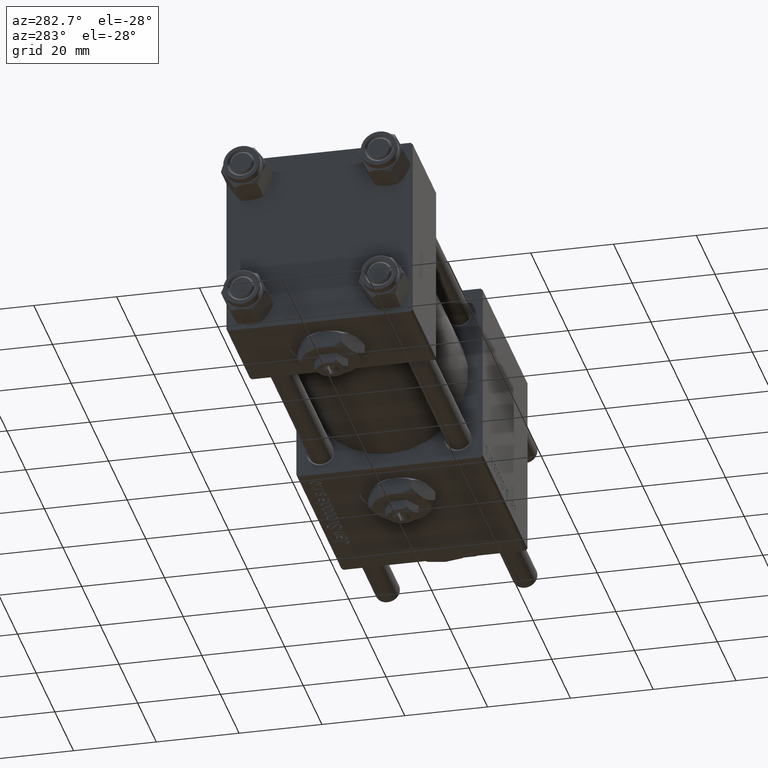
[diagram: clean part render]
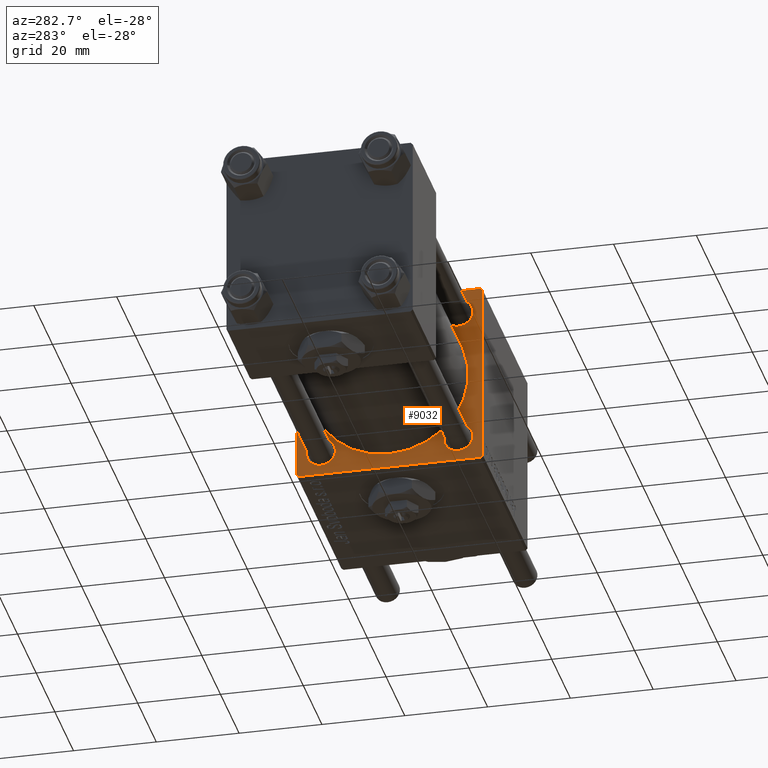
[diagram: same view with one face highlighted and labeled with its STEP entity id]
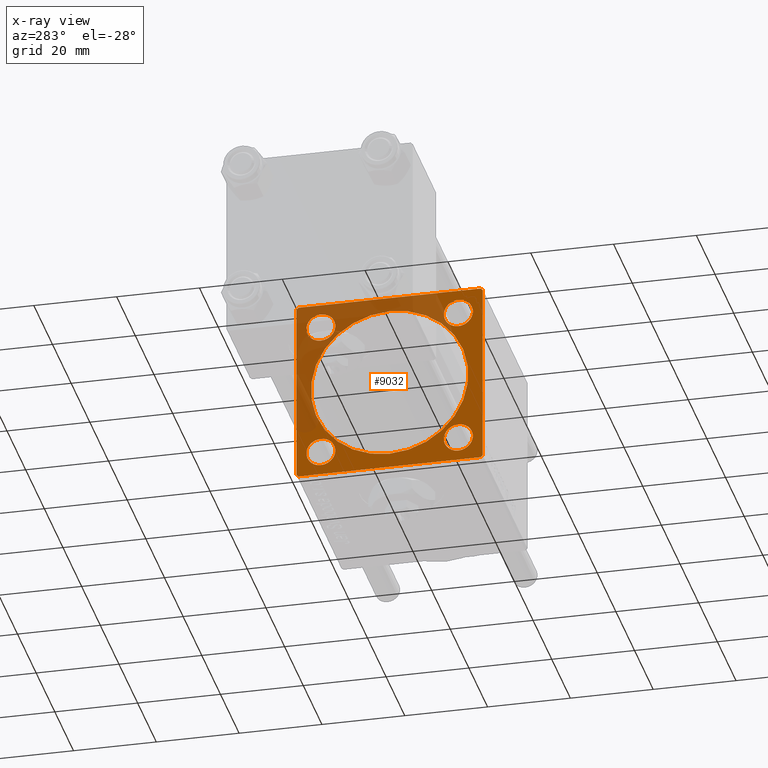
[diagram: x-ray of the same camera — body ghosted, the highlighted face saturated]
A machine part, auxiliary view. The second image highlights one B-rep face of the part: STEP entity #9032.
The next image is the same camera in x-ray: the body ghosted, the highlighted face saturated — about 40% of this face is hidden behind the body in this view.
In plain terms, the highlighted planar face has unit normal (-1, 0, 0).
Its self-contained STEP definition (entity closure, byte-faithful):
#458 = DIRECTION ( 'NONE',  ( 0.000000000000000000, 0.000000000000000000, -1.000000000000000000 ) ) ;
#637 = EDGE_CURVE ( 'NONE', #55039, #17297, #49573, .T. ) ;
#638 = CARTESIAN_POINT ( 'NONE',  ( 75.00000000000001421, 16.59999999999999787, -16.60000000000000497 ) ) ;
#649 = AXIS2_PLACEMENT_3D ( 'NONE', #12727, #50199, #18370 ) ;
#927 = DIRECTION ( 'NONE',  ( 1.000000000000000000, -0.000000000000000000, 0.000000000000000000 ) ) ;
#1173 = CARTESIAN_POINT ( 'NONE',  ( 75.00000000000001421, -21.99999999999998224, -22.50000000000000000 ) ) ;
#1611 = LINE ( 'NONE', #10829, #16362 ) ;
#2902 = AXIS2_PLACEMENT_3D ( 'NONE', #20606, #57190, #43792 ) ;
#3239 = VERTEX_POINT ( 'NONE', #1173 ) ;
#3287 = CIRCLE ( 'NONE', #21391, 3.500000000000016875 ) ;
#4678 = FACE_BOUND ( 'NONE', #40788, .T. ) ;
#4695 = EDGE_LOOP ( 'NONE', ( #56896, #32554 ) ) ;
#4976 = VECTOR ( 'NONE', #458, 1000.000000000000000 ) ;
#5048 = CARTESIAN_POINT ( 'NONE',  ( 75.00000000000001421, 22.50000000000000355, -22.49999999999999645 ) ) ;
#5407 = VECTOR ( 'NONE', #34280, 1000.000000000000000 ) ;
#5535 = CIRCLE ( 'NONE', #7452, 3.500000000000031086 ) ;
#6814 = ORIENTED_EDGE ( 'NONE', *, *, #39227, .T. ) ;
#7042 = CARTESIAN_POINT ( 'NONE',  ( 75.00000000000001421, 22.50000000000000355, 22.50000000000000355 ) ) ;
#7196 = CARTESIAN_POINT ( 'NONE',  ( 75.00000000000001421, 22.50000000000000355, 22.50000000000000355 ) ) ;
#7308 = CIRCLE ( 'NONE', #13935, 19.00000000000000000 ) ;
#7452 = AXIS2_PLACEMENT_3D ( 'NONE', #24826, #53354, #16486 ) ;
#7617 = DIRECTION ( 'NONE',  ( 0.000000000000000000, 0.000000000000000000, 1.000000000000000000 ) ) ;
#7820 = CIRCLE ( 'NONE', #21128, 3.500000000000016875 ) ;
#7864 = EDGE_LOOP ( 'NONE', ( #56945, #38675 ) ) ;
#9032 = ADVANCED_FACE ( 'NONE', ( #45430, #49892, #27292, #4678, #35033, #12437 ), #48728, .T. ) ;
#9392 = VERTEX_POINT ( 'NONE', #30361 ) ;
#9473 = ORIENTED_EDGE ( 'NONE', *, *, #46901, .T. ) ;
#10165 = CARTESIAN_POINT ( 'NONE',  ( 75.00000000000001421, -2.602085213965210642E-15, 19.00000000000000000 ) ) ;
#10522 = ORIENTED_EDGE ( 'NONE', *, *, #55173, .T. ) ;
#10790 = EDGE_CURVE ( 'NONE', #56721, #30757, #43498, .T. ) ;
#10829 = CARTESIAN_POINT ( 'NONE',  ( 75.00000000000001421, -22.25000000000015277, -22.24999999999984013 ) ) ;
#11320 = ORIENTED_EDGE ( 'NONE', *, *, #637, .T. ) ;
#11451 = VERTEX_POINT ( 'NONE', #44048 ) ;
#11636 = CIRCLE ( 'NONE', #14537, 3.500000000000016875 ) ;
#12289 = EDGE_CURVE ( 'NONE', #14080, #11451, #5535, .T. ) ;
#12437 = FACE_OUTER_BOUND ( 'NONE', #12666, .T. ) ;
#12666 = EDGE_LOOP ( 'NONE', ( #9473, #10522, #34477, #18524, #49636, #11320, #18458, #6814 ) ) ;
#12727 = CARTESIAN_POINT ( 'NONE',  ( 75.00000000000001421, 0.000000000000000000, 0.000000000000000000 ) ) ;
#13453 = CARTESIAN_POINT ( 'NONE',  ( 75.00000000000001421, -2.752562955852396712E-16, -19.00000000000000000 ) ) ;
#13826 = VERTEX_POINT ( 'NONE', #55284 ) ;
#13935 = AXIS2_PLACEMENT_3D ( 'NONE', #47030, #47330, #29490 ) ;
#14080 = VERTEX_POINT ( 'NONE', #20387 ) ;
#14537 = AXIS2_PLACEMENT_3D ( 'NONE', #48372, #15651, #7617 ) ;
#14695 = CARTESIAN_POINT ( 'NONE',  ( 75.00000000000001421, -21.99999999999998224, 22.49999999999999289 ) ) ;
#15651 = DIRECTION ( 'NONE',  ( 1.000000000000000000, -0.000000000000000000, 0.000000000000000000 ) ) ;
#15765 = CIRCLE ( 'NONE', #30972, 3.500000000000016875 ) ;
#15982 = LINE ( 'NONE', #7042, #47013 ) ;
#16362 = VECTOR ( 'NONE', #51595, 999.9999999999998863 ) ;
#16486 = DIRECTION ( 'NONE',  ( 0.000000000000000000, 0.000000000000000000, 1.000000000000000000 ) ) ;
#17188 = CIRCLE ( 'NONE', #2902, 3.500000000000031086 ) ;
#17297 = VERTEX_POINT ( 'NONE', #21591 ) ;
#18027 = VECTOR ( 'NONE', #22628, 1000.000000000000000 ) ;
#18323 = ORIENTED_EDGE ( 'NONE', *, *, #19178, .T. ) ;
#18370 = DIRECTION ( 'NONE',  ( -0.000000000000000000, 0.000000000000000000, 1.000000000000000000 ) ) ;
#18424 = CARTESIAN_POINT ( 'NONE',  ( 75.00000000000001421, 22.00000000000000355, -22.49999999999999645 ) ) ;
#18458 = ORIENTED_EDGE ( 'NONE', *, *, #29884, .T. ) ;
#18524 = ORIENTED_EDGE ( 'NONE', *, *, #34808, .T. ) ;
#19178 = EDGE_CURVE ( 'NONE', #26141, #9392, #17188, .T. ) ;
#19549 = CARTESIAN_POINT ( 'NONE',  ( 75.00000000000001421, -16.59999999999999076, 16.60000000000000853 ) ) ;
#19768 = DIRECTION ( 'NONE',  ( 1.000000000000000000, -0.000000000000000000, 0.000000000000000000 ) ) ;
#20361 = DIRECTION ( 'NONE',  ( 1.000000000000000000, -0.000000000000000000, 0.000000000000000000 ) ) ;
#20387 = CARTESIAN_POINT ( 'NONE',  ( 75.00000000000001421, 16.59999999999999787, -20.10000000000003340 ) ) ;
#20606 = CARTESIAN_POINT ( 'NONE',  ( 75.00000000000001421, -16.59999999999999076, -16.60000000000000853 ) ) ;
#21128 = AXIS2_PLACEMENT_3D ( 'NONE', #19549, #51375, #51661 ) ;
#21391 = AXIS2_PLACEMENT_3D ( 'NONE', #32573, #19768, #42659 ) ;
#21453 = CARTESIAN_POINT ( 'NONE',  ( 75.00000000000001421, -2.602085213965210642E-15, 0.000000000000000000 ) ) ;
#21591 = CARTESIAN_POINT ( 'NONE',  ( 75.00000000000001421, 22.50000000000000355, 21.99999999999997513 ) ) ;
#22091 = VERTEX_POINT ( 'NONE', #14695 ) ;
#22212 = LINE ( 'NONE', #58787, #4976 ) ;
#22614 = CARTESIAN_POINT ( 'NONE',  ( 75.00000000000001421, -22.24999999999969447, 22.25000000000030909 ) ) ;
#22628 = DIRECTION ( 'NONE',  ( 0.000000000000000000, -1.000000000000000000, -7.709882115452476934E-17 ) ) ;
#23303 = VECTOR ( 'NONE', #25065, 1000.000000000000000 ) ;
#23660 = EDGE_CURVE ( 'NONE', #23711, #48681, #3287, .T. ) ;
#23711 = VERTEX_POINT ( 'NONE', #37597 ) ;
#23887 = AXIS2_PLACEMENT_3D ( 'NONE', #638, #927, #54209 ) ;
#24312 = VECTOR ( 'NONE', #45977, 1000.000000000000000 ) ;
#24826 = CARTESIAN_POINT ( 'NONE',  ( 75.00000000000001421, 16.59999999999999787, -16.60000000000000497 ) ) ;
#25065 = DIRECTION ( 'NONE',  ( 0.000000000000000000, 0.000000000000000000, -1.000000000000000000 ) ) ;
#25917 = DIRECTION ( 'NONE',  ( 1.000000000000000000, 0.000000000000000000, 0.000000000000000000 ) ) ;
#26141 = VERTEX_POINT ( 'NONE', #32305 ) ;
#26269 = EDGE_CURVE ( 'NONE', #9392, #26141, #57570, .T. ) ;
#26345 = ORIENTED_EDGE ( 'NONE', *, *, #56961, .T. ) ;
#27185 = DIRECTION ( 'NONE',  ( 0.000000000000000000, 0.000000000000000000, 1.000000000000000000 ) ) ;
#27292 = FACE_BOUND ( 'NONE', #4695, .T. ) ;
#27573 = CARTESIAN_POINT ( 'NONE',  ( 75.00000000000001421, -16.59999999999999076, 13.09999999999999076 ) ) ;
#28615 = EDGE_CURVE ( 'NONE', #34245, #50146, #15765, .T. ) ;
#28917 = LINE ( 'NONE', #7196, #23303 ) ;
#29277 = EDGE_CURVE ( 'NONE', #55039, #22091, #15982, .T. ) ;
#29490 = DIRECTION ( 'NONE',  ( 0.000000000000000000, 0.000000000000000000, -1.000000000000000000 ) ) ;
#29884 = EDGE_CURVE ( 'NONE', #17297, #13826, #28917, .T. ) ;
#30361 = CARTESIAN_POINT ( 'NONE',  ( 75.00000000000001421, -16.59999999999999076, -13.09999999999997655 ) ) ;
#30757 = VERTEX_POINT ( 'NONE', #13453 ) ;
#30799 = EDGE_LOOP ( 'NONE', ( #44969, #26345 ) ) ;
#30972 = AXIS2_PLACEMENT_3D ( 'NONE', #46553, #20361, #51874 ) ;
#31080 = VERTEX_POINT ( 'NONE', #18424 ) ;
#31648 = DIRECTION ( 'NONE',  ( 1.000000000000000000, -0.000000000000000000, 0.000000000000000000 ) ) ;
#32305 = CARTESIAN_POINT ( 'NONE',  ( 75.00000000000001421, -16.59999999999999076, -20.10000000000003695 ) ) ;
#32554 = ORIENTED_EDGE ( 'NONE', *, *, #12289, .T. ) ;
#32573 = CARTESIAN_POINT ( 'NONE',  ( 75.00000000000001421, 16.59999999999999787, 16.60000000000000497 ) ) ;
#33770 = AXIS2_PLACEMENT_3D ( 'NONE', #41451, #31648, #27185 ) ;
#34245 = VERTEX_POINT ( 'NONE', #27573 ) ;
#34280 = DIRECTION ( 'NONE',  ( -0.000000000000000000, 0.7071067811865573427, 0.7071067811865378028 ) ) ;
#34477 = ORIENTED_EDGE ( 'NONE', *, *, #55166, .F. ) ;
#34808 = EDGE_CURVE ( 'NONE', #36449, #22091, #57202, .T. ) ;
#35033 = FACE_BOUND ( 'NONE', #30799, .T. ) ;
#36284 = LINE ( 'NONE', #5048, #18027 ) ;
#36449 = VERTEX_POINT ( 'NONE', #46161 ) ;
#37597 = CARTESIAN_POINT ( 'NONE',  ( 75.00000000000001421, 16.59999999999999787, 20.10000000000001918 ) ) ;
#38675 = ORIENTED_EDGE ( 'NONE', *, *, #56304, .T. ) ;
#39227 = EDGE_CURVE ( 'NONE', #13826, #31080, #47453, .T. ) ;
#40788 = EDGE_LOOP ( 'NONE', ( #43997, #18323 ) ) ;
#41451 = CARTESIAN_POINT ( 'NONE',  ( 75.00000000000001421, -16.59999999999999076, -16.60000000000000853 ) ) ;
#41630 = VECTOR ( 'NONE', #46584, 1000.000000000000000 ) ;
#42159 = DIRECTION ( 'NONE',  ( 0.000000000000000000, -1.000000000000000000, -2.312964634635742957E-16 ) ) ;
#42659 = DIRECTION ( 'NONE',  ( 0.000000000000000000, 0.000000000000000000, 1.000000000000000000 ) ) ;
#42681 = VERTEX_POINT ( 'NONE', #48791 ) ;
#43498 = CIRCLE ( 'NONE', #46341, 19.00000000000000000 ) ;
#43792 = DIRECTION ( 'NONE',  ( 0.000000000000000000, 0.000000000000000000, 1.000000000000000000 ) ) ;
#43997 = ORIENTED_EDGE ( 'NONE', *, *, #26269, .T. ) ;
#44048 = CARTESIAN_POINT ( 'NONE',  ( 75.00000000000001421, 16.59999999999999787, -13.09999999999997300 ) ) ;
#44332 = DIRECTION ( 'NONE',  ( 0.000000000000000000, 0.000000000000000000, -1.000000000000000000 ) ) ;
#44969 = ORIENTED_EDGE ( 'NONE', *, *, #10790, .T. ) ;
#45430 = FACE_BOUND ( 'NONE', #47337, .T. ) ;
#45977 = DIRECTION ( 'NONE',  ( 0.000000000000000000, 0.7071067811865573427, -0.7071067811865378028 ) ) ;
#46161 = CARTESIAN_POINT ( 'NONE',  ( 75.00000000000001421, -22.49999999999999645, 22.00000000000000711 ) ) ;
#46341 = AXIS2_PLACEMENT_3D ( 'NONE', #21453, #25917, #44332 ) ;
#46553 = CARTESIAN_POINT ( 'NONE',  ( 75.00000000000001421, -16.59999999999999076, 16.60000000000000853 ) ) ;
#46584 = DIRECTION ( 'NONE',  ( -0.000000000000000000, -0.7071067811865573427, -0.7071067811865378028 ) ) ;
#46901 = EDGE_CURVE ( 'NONE', #31080, #3239, #36284, .T. ) ;
#47013 = VECTOR ( 'NONE', #42159, 1000.000000000000000 ) ;
#47030 = CARTESIAN_POINT ( 'NONE',  ( 75.00000000000001421, -2.602085213965210642E-15, 0.000000000000000000 ) ) ;
#47330 = DIRECTION ( 'NONE',  ( 1.000000000000000000, 0.000000000000000000, 0.000000000000000000 ) ) ;
#47337 = EDGE_LOOP ( 'NONE', ( #58206, #47400 ) ) ;
#47400 = ORIENTED_EDGE ( 'NONE', *, *, #28615, .T. ) ;
#47453 = LINE ( 'NONE', #51620, #41630 ) ;
#48372 = CARTESIAN_POINT ( 'NONE',  ( 75.00000000000001421, 16.59999999999999787, 16.60000000000000497 ) ) ;
#48681 = VERTEX_POINT ( 'NONE', #49431 ) ;
#48728 = PLANE ( 'NONE',  #649 ) ;
#48791 = CARTESIAN_POINT ( 'NONE',  ( 75.00000000000001421, -22.49999999999999645, -21.99999999999997868 ) ) ;
#49431 = CARTESIAN_POINT ( 'NONE',  ( 75.00000000000001421, 16.59999999999999787, 13.09999999999998721 ) ) ;
#49573 = LINE ( 'NONE', #54910, #24312 ) ;
#49636 = ORIENTED_EDGE ( 'NONE', *, *, #29277, .F. ) ;
#49892 = FACE_BOUND ( 'NONE', #7864, .T. ) ;
#50146 = VERTEX_POINT ( 'NONE', #50749 ) ;
#50199 = DIRECTION ( 'NONE',  ( -1.000000000000000000, 0.000000000000000000, -0.000000000000000000 ) ) ;
#50749 = CARTESIAN_POINT ( 'NONE',  ( 75.00000000000001421, -16.59999999999999076, 20.10000000000002274 ) ) ;
#51375 = DIRECTION ( 'NONE',  ( 1.000000000000000000, -0.000000000000000000, 0.000000000000000000 ) ) ;
#51467 = EDGE_CURVE ( 'NONE', #11451, #14080, #55177, .T. ) ;
#51595 = DIRECTION ( 'NONE',  ( 0.000000000000000000, -0.7071067811865425767, 0.7071067811865525687 ) ) ;
#51620 = CARTESIAN_POINT ( 'NONE',  ( 75.00000000000001421, 22.24999999999969802, -22.25000000000031619 ) ) ;
#51661 = DIRECTION ( 'NONE',  ( 0.000000000000000000, 0.000000000000000000, 1.000000000000000000 ) ) ;
#51874 = DIRECTION ( 'NONE',  ( 0.000000000000000000, 0.000000000000000000, 1.000000000000000000 ) ) ;
#53354 = DIRECTION ( 'NONE',  ( 1.000000000000000000, -0.000000000000000000, 0.000000000000000000 ) ) ;
#54209 = DIRECTION ( 'NONE',  ( 0.000000000000000000, 0.000000000000000000, 1.000000000000000000 ) ) ;
#54910 = CARTESIAN_POINT ( 'NONE',  ( 75.00000000000001421, 22.24999999999968026, 22.25000000000029488 ) ) ;
#54948 = EDGE_CURVE ( 'NONE', #50146, #34245, #7820, .T. ) ;
#55039 = VERTEX_POINT ( 'NONE', #57601 ) ;
#55166 = EDGE_CURVE ( 'NONE', #36449, #42681, #22212, .T. ) ;
#55173 = EDGE_CURVE ( 'NONE', #3239, #42681, #1611, .T. ) ;
#55177 = CIRCLE ( 'NONE', #23887, 3.500000000000031086 ) ;
#55284 = CARTESIAN_POINT ( 'NONE',  ( 75.00000000000001421, 22.50000000000000355, -21.99999999999999645 ) ) ;
#56304 = EDGE_CURVE ( 'NONE', #48681, #23711, #11636, .T. ) ;
#56721 = VERTEX_POINT ( 'NONE', #10165 ) ;
#56896 = ORIENTED_EDGE ( 'NONE', *, *, #51467, .T. ) ;
#56945 = ORIENTED_EDGE ( 'NONE', *, *, #23660, .T. ) ;
#56961 = EDGE_CURVE ( 'NONE', #30757, #56721, #7308, .T. ) ;
#57190 = DIRECTION ( 'NONE',  ( 1.000000000000000000, -0.000000000000000000, 0.000000000000000000 ) ) ;
#57202 = LINE ( 'NONE', #22614, #5407 ) ;
#57570 = CIRCLE ( 'NONE', #33770, 3.500000000000031086 ) ;
#57601 = CARTESIAN_POINT ( 'NONE',  ( 75.00000000000001421, 21.99999999999996092, 22.50000000000000355 ) ) ;
#58206 = ORIENTED_EDGE ( 'NONE', *, *, #54948, .T. ) ;
#58787 = CARTESIAN_POINT ( 'NONE',  ( 75.00000000000001421, -22.49999999999999645, 22.49999999999999289 ) ) ;